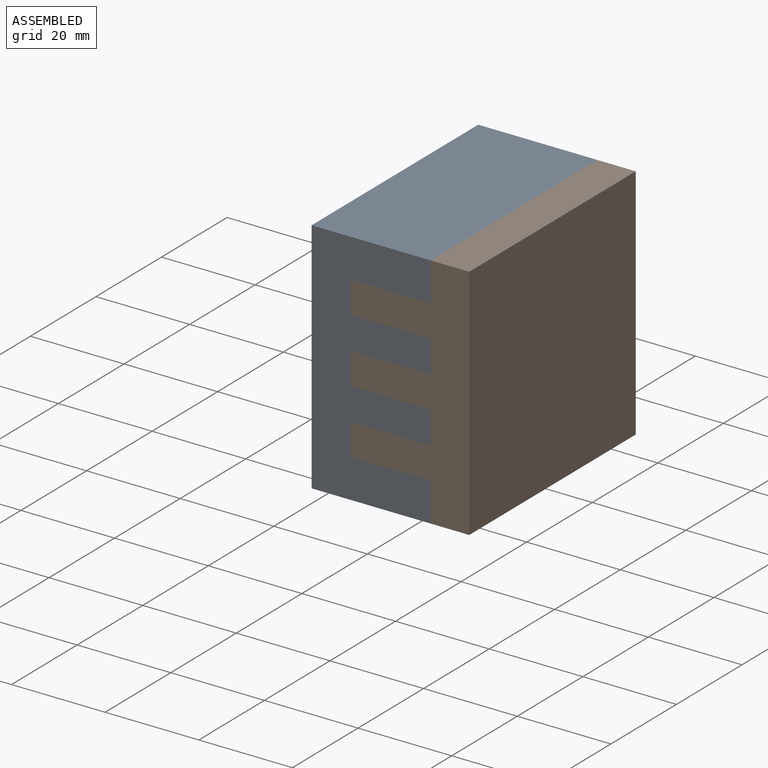
[diagram: assembled view]
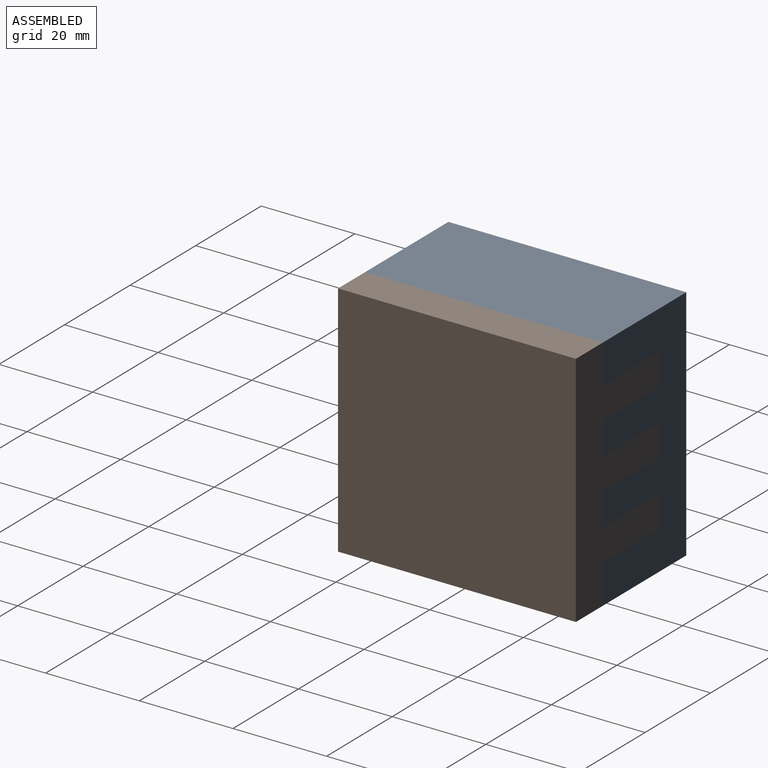
[diagram: assembled view, second angle]
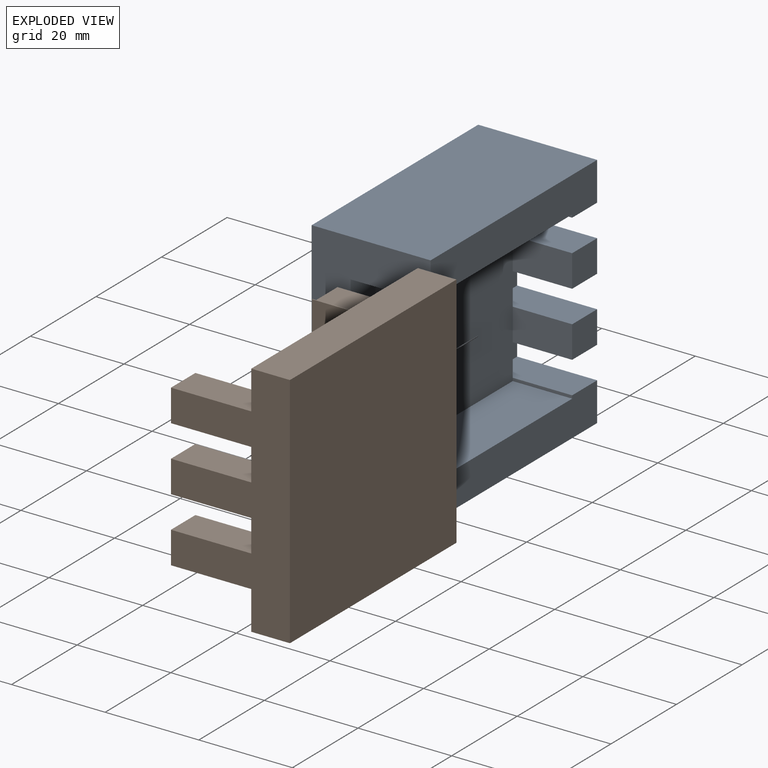
[diagram: exploded view]
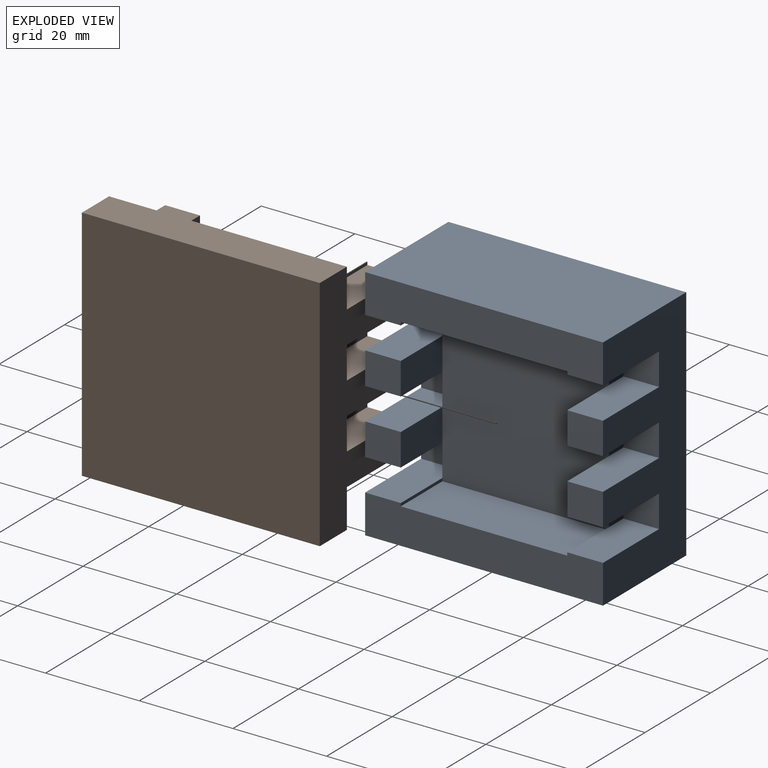
[diagram: exploded view, second angle]
ASSEMBLY  parts=2 mates=3
PART A: 46 faces, bbox 25.4x50.8x50.8 mm
  f0: plane 50.8x8.26mm, normal (1,0,0), area 396.8mm2, adj f4,f10,f14,f16,f17,f18,f32,f44
  f1: plane 7.62x6.86mm, normal (1,0,0), area 52.3mm2, adj f3,f17,f40,f42
  f2: plane 7.62x6.86mm, normal (1,0,0), area 52.3mm2, adj f5,f17,f36,f38
  f3: plane 12.7x6.86mm, normal (0,-1,0), area 87.1mm2, adj f1,f21,f40,f42
  f4: plane 12.7x0.64mm, normal (0,-1,0), area 8.1mm2, adj f0,f18,f21,f44
  f5: plane 12.7x6.86mm, normal (0,-1,0), area 87.1mm2, adj f2,f21,f36,f38
  f6: plane 12.7x0.64mm, normal (0,-1,0), area 8.1mm2, adj f9,f20,f21,f34
  f7: plane 7.62x6.86mm, normal (1,0,0), area 52.3mm2, adj f11,f16,f28,f31
  f8: plane 7.62x6.86mm, normal (1,0,0), area 52.3mm2, adj f12,f16,f24,f27
  f9: plane 50.8x8.26mm, normal (1,0,0), area 396.8mm2, adj f6,f13,f16,f17,f19,f20,f23,f34
  f10: plane 12.7x0.64mm, normal (0,1,0), area 8.1mm2, adj f0,f18,f21,f32
  f11: plane 12.7x6.86mm, normal (0,1,0), area 87.1mm2, adj f7,f21,f28,f31
  f12: plane 12.7x6.86mm, normal (0,1,0), area 87.1mm2, adj f8,f21,f24,f27
  f13: plane 50.8x25.4mm, normal (0,0,-1), area 1290.3mm2, adj f9,f15,f16,f17
  f14: plane 50.8x25.4mm, normal (0,0,1), area 1290.3mm2, adj f0,f15,f16,f17
  f15: plane 50.8x50.8mm, normal (-1,0,0), area 2580.6mm2, adj f13,f14,f16,f17
  f16: plane 50.8x25.4mm, normal (0,-1,0), area 938.7mm2, adj f0,f7,f8,f9,f13,f14,f15,f22
  f17: plane 50.8x25.4mm, normal (0,1,0), area 938.6mm2, adj f0,f1,f2,f9,f13,f14,f15,f34
  f18: plane 35.56x12.7mm, normal (0,0,-1), area 451.6mm2, adj f0,f4,f10,f21
  f19: plane 12.7x0.64mm, normal (0,1,0), area 8.1mm2, adj f9,f20,f21,f23
  f20: plane 35.56x12.7mm, normal (0,0,1), area 451.6mm2, adj f6,f9,f19,f21
  f21: plane 35.56x35.56mm, normal (1,0,0), area 1264.5mm2, adj f3,f4,f5,f6,f10,f11,f12,f18
  f22: plane 7.62x6.86mm, normal (1,0,0), area 52.3mm2, adj f16,f23,f24,f25
  f23: plane 17.09x7.62mm, normal (0,0,1), area 130.2mm2, adj f9,f16,f19,f22,f25
  f24: plane 17.09x7.62mm, normal (0,0,-1), area 130.2mm2, adj f8,f12,f16,f22,f25
  f25: plane 6.86x4.39mm, normal (0,-1,0), area 30.1mm2, adj f21,f22,f23,f24
  f26: plane 7.62x6.86mm, normal (1,0,0), area 52.3mm2, adj f16,f27,f28,f29
  f27: plane 17.09x7.62mm, normal (0,0,1), area 130.2mm2, adj f8,f12,f16,f26,f29
  f28: plane 17.09x7.62mm, normal (0,0,-1), area 130.2mm2, adj f7,f11,f16,f26,f29
  f29: plane 6.86x4.39mm, normal (0,-1,0), area 30.1mm2, adj f21,f26,f27,f28
  f30: plane 7.62x6.86mm, normal (1,0,0), area 52.3mm2, adj f16,f31,f32,f33
  f31: plane 17.09x7.62mm, normal (0,0,1), area 130.2mm2, adj f7,f11,f16,f30,f33
  f32: plane 17.09x7.62mm, normal (0,0,-1), area 130.2mm2, adj f0,f10,f16,f30,f33
  f33: plane 6.86x4.39mm, normal (0,-1,0), area 30.1mm2, adj f21,f30,f31,f32
  f34: plane 17.09x7.62mm, normal (0,0,1), area 130.3mm2, adj f6,f9,f17,f35,f37
  f35: plane 7.62x6.86mm, normal (1,0,0), area 52.3mm2, adj f17,f34,f36,f37
  f36: plane 17.09x7.62mm, normal (0,0,-1), area 130.3mm2, adj f2,f5,f17,f35,f37
  f37: plane 6.86x4.39mm, normal (0,1,0), area 30.1mm2, adj f21,f34,f35,f36
  f38: plane 17.09x7.62mm, normal (0,0,1), area 130.3mm2, adj f2,f5,f17,f39,f41
  f39: plane 7.62x6.86mm, normal (1,0,0), area 52.3mm2, adj f17,f38,f40,f41
  f40: plane 17.09x7.62mm, normal (0,0,-1), area 130.3mm2, adj f1,f3,f17,f39,f41
  f41: plane 6.86x4.39mm, normal (0,1,0), area 30.1mm2, adj f21,f38,f39,f40
  f42: plane 17.09x7.62mm, normal (0,0,1), area 130.3mm2, adj f1,f3,f17,f43,f45
  f43: plane 7.62x6.86mm, normal (1,0,0), area 52.3mm2, adj f17,f42,f44,f45
  f44: plane 17.09x7.62mm, normal (0,0,-1), area 130.3mm2, adj f0,f4,f17,f43,f45
  f45: plane 6.86x4.39mm, normal (0,1,0), area 30.1mm2, adj f21,f42,f43,f44
PART B: 42 faces, bbox 25.4x50.8x50.8 mm
  f0: plane 4.45x0.64mm, normal (0,-1,0), area 2.8mm2, adj f12,f25,f29,f41
  f1: plane 50.8x8.26mm, normal (0,0,1), area 419.4mm2, adj f8,f13,f14,f27
  f2: plane 35.56x7.8mm, normal (-1,0,0), area 163.3mm2, adj f3,f13,f15,f17,f18,f19,f21,f22
  f3: plane 17.15x0.64mm, normal (0,1,0), area 10.9mm2, adj f2,f27,f28,f40
  f4: plane 50.8x8.26mm, normal (0,0,-1), area 419.4mm2, adj f8,f13,f14,f25
  f5: plane 7.44x6.86mm, normal (-1,0,0), area 51mm2, adj f8,f10,f35,f38
  f6: plane 7.44x6.86mm, normal (-1,0,0), area 51mm2, adj f8,f9,f31,f34
  f7: plane 7.44x6.86mm, normal (-1,0,0), area 51mm2, adj f8,f11,f29,f30
  f8: plane 50.8x25.4mm, normal (0,-1,0), area 772.1mm2, adj f1,f4,f5,f6,f7,f14,f25,f27
  f9: plane 12.7x6.86mm, normal (0,1,0), area 87.1mm2, adj f6,f12,f31,f34
  f10: plane 12.7x6.86mm, normal (0,1,0), area 87.1mm2, adj f5,f12,f35,f38
  f11: plane 12.7x6.86mm, normal (0,1,0), area 87.1mm2, adj f7,f12,f29,f30
  f12: plane 35.56x35.56mm, normal (-1,0,0), area 1261.7mm2, adj f0,f9,f10,f11,f15,f29,f30,f31
  f13: plane 50.8x25.4mm, normal (0,1,0), area 772.1mm2, adj f1,f2,f4,f14,f16,f17,f18,f20
  f14: plane 50.8x50.8mm, normal (1,0,0), area 2580.6mm2, adj f1,f4,f8,f13
  f15: plane 35.56x12.7mm, normal (0,-1,0), area 451.6mm2, adj f2,f12,f40,f41
  f16: plane 7.62x6.86mm, normal (-1,0,0), area 52.3mm2, adj f13,f17,f18,f19
  f17: plane 17.15x7.62mm, normal (0,0,1), area 130.6mm2, adj f2,f13,f16,f19
  f18: plane 17.15x7.62mm, normal (0,0,-1), area 130.6mm2, adj f2,f13,f16,f19
  f19: plane 17.15x6.86mm, normal (0,1,0), area 117.6mm2, adj f2,f16,f17,f18
  f20: plane 7.62x6.86mm, normal (-1,0,0), area 52.3mm2, adj f13,f21,f22,f23
  f21: plane 17.15x7.62mm, normal (0,0,1), area 130.6mm2, adj f2,f13,f20,f23
  f22: plane 17.15x7.62mm, normal (0,0,-1), area 130.6mm2, adj f2,f13,f20,f23
  f23: plane 17.15x6.86mm, normal (0,1,0), area 117.6mm2, adj f2,f20,f21,f22
  f24: plane 17.15x7.62mm, normal (0,0,-1), area 130.6mm2, adj f2,f13,f25,f26
  f25: plane 50.8x8.26mm, normal (-1,0,0), area 396.8mm2, adj f0,f4,f8,f13,f24,f26,f29,f41
  f26: plane 17.15x0.64mm, normal (0,1,0), area 10.9mm2, adj f2,f24,f25,f41
  f27: plane 50.8x8.26mm, normal (-1,0,0), area 396.8mm2, adj f1,f3,f8,f13,f28,f38,f39,f40
  f28: plane 17.15x7.62mm, normal (0,0,1), area 130.6mm2, adj f2,f3,f13,f27
  f29: plane 17.15x7.62mm, normal (0,0,-1), area 128.3mm2, adj f0,f7,f8,f11,f12,f25
  f30: plane 17.15x7.62mm, normal (0,0,1), area 128.3mm2, adj f7,f8,f11,f12,f32,f33
  f31: plane 17.15x7.62mm, normal (0,0,-1), area 128.3mm2, adj f6,f8,f9,f12,f32,f33
  f32: plane 7.62x6.86mm, normal (-1,0,0), area 52.3mm2, adj f8,f30,f31,f33
  f33: plane 6.86x4.45mm, normal (0,-1,0), area 30.5mm2, adj f12,f30,f31,f32
  f34: plane 17.15x7.62mm, normal (0,0,1), area 128.3mm2, adj f6,f8,f9,f12,f36,f37
  f35: plane 17.15x7.62mm, normal (0,0,-1), area 128.3mm2, adj f5,f8,f10,f12,f36,f37
  f36: plane 7.62x6.86mm, normal (-1,0,0), area 52.3mm2, adj f8,f34,f35,f37
  f37: plane 6.86x4.45mm, normal (0,-1,0), area 30.5mm2, adj f12,f34,f35,f36
  f38: plane 17.15x7.62mm, normal (0,0,1), area 128.3mm2, adj f5,f8,f10,f12,f27,f39
  f39: plane 4.45x0.64mm, normal (0,-1,0), area 2.8mm2, adj f12,f27,f38,f40
  f40: plane 35.56x17.15mm, normal (0,0,1), area 160.4mm2, adj f2,f3,f12,f15,f27,f39
  f41: plane 35.56x17.15mm, normal (0,0,-1), area 160.4mm2, adj f0,f2,f12,f15,f25,f26
PLACE A t=(-42.09,65.34,-21.27)mm
PLACE B t=(-33.83,65.34,-21.27)mm
MATE planar A.f16 <-> B.f8  axis (0,-1,0) through (-29.39,14.54,29.53)mm
MATE planar A.f0 <-> B.f27  axis (1,0,0) through (-16.69,39.94,25.62)mm
MATE planar A.f14 <-> B.f1  axis (0,0,1) through (-29.39,39.94,29.53)mm
